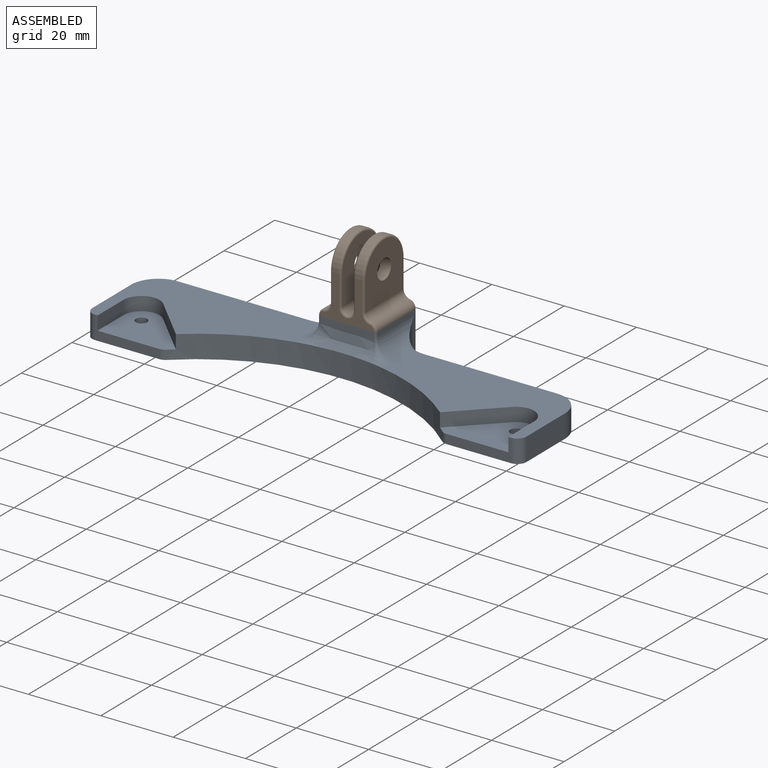
[diagram: assembled view]
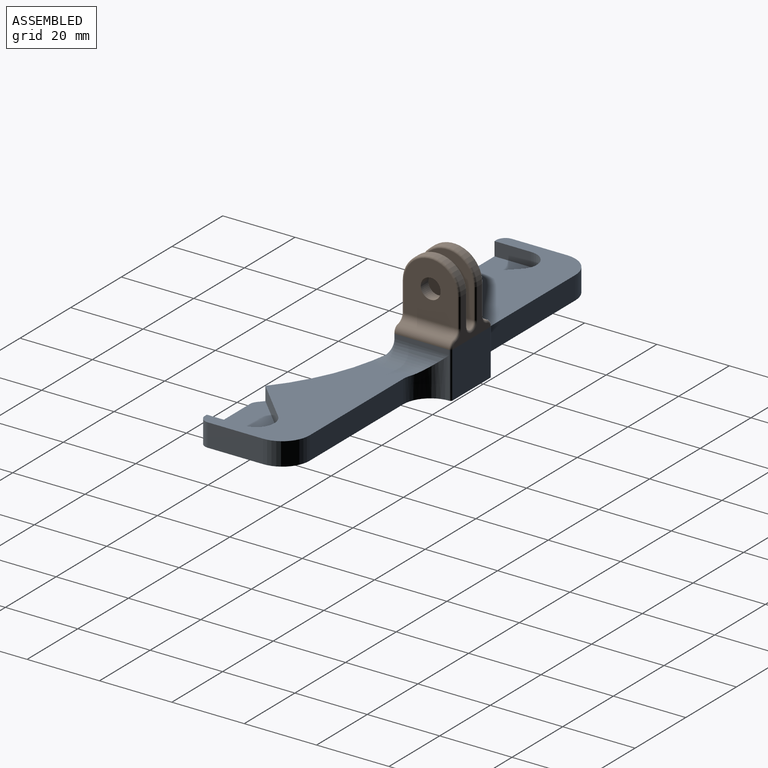
[diagram: assembled view, second angle]
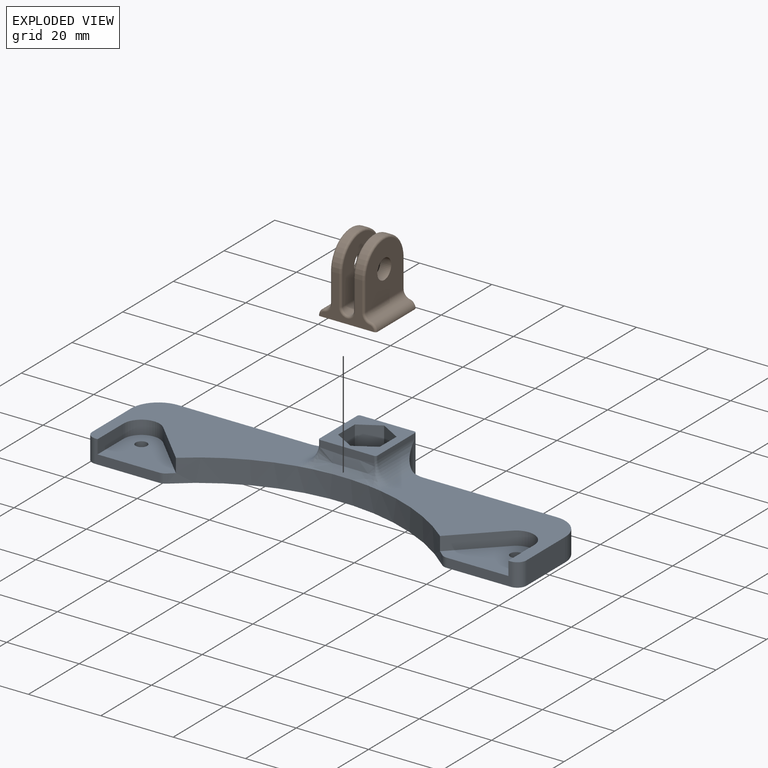
[diagram: exploded view]
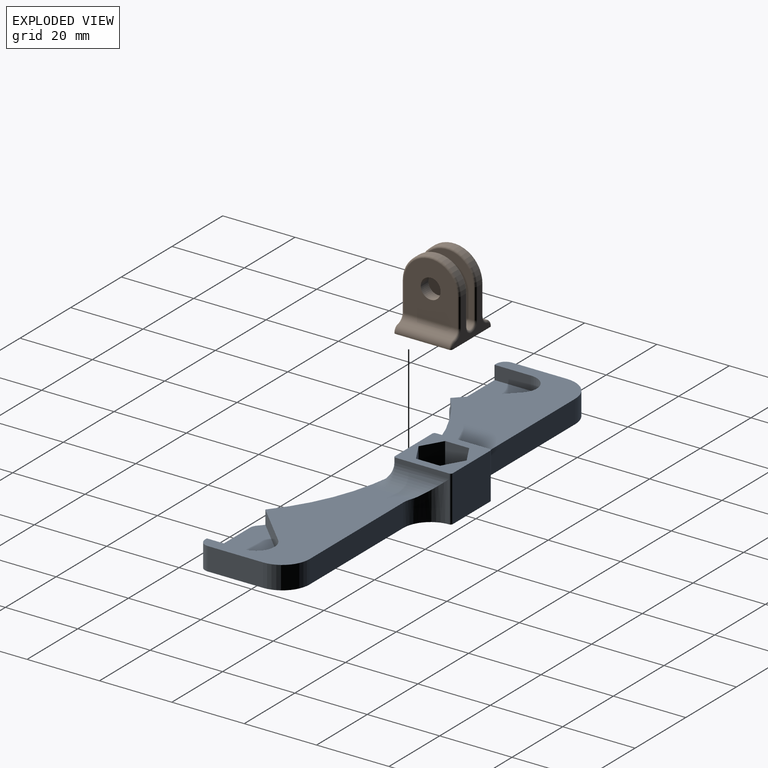
[diagram: exploded view, second angle]
ASSEMBLY  parts=2 mates=3
PART A: 53 faces, bbox 120x33.4x12.7 mm
  f0: plane 16x16mm, normal (0,0,1), area 141mm2, adj f21,f22,f23,f24,f25,f26,f27,f28
  f1: plane 48.5x25.83mm, normal (0,0,1), area 755.8mm2, adj f3,f4,f5,f9,f14,f15,f16,f31
  f2: plane 48.5x25.83mm, normal (0,0,1), area 755.8mm2, adj f5,f8,f10,f11,f18,f19,f20,f32
  f3: plane 36.76x6.35mm, normal (0,1,0), area 233.4mm2, adj f1,f12,f34,f35
  f4: plane 17.74x6.35mm, normal (0,-1,0), area 47.8mm2, adj f1,f12,f13,f15,f30,f31
  f5: cylinder r=56.83mm len=76.04mm, axis (0,0,1), area 513.5mm2, adj f1,f2,f12,f13,f14,f17,f18,f29
  f6: cylinder r=1.59mm len=3.18mm, axis (0,0,1), area 25.3mm2, adj f12,f17
  f7: cylinder r=1.59mm len=3.18mm, axis (0,0,1), area 25.3mm2, adj f12,f13
  f8: plane 17.74x6.35mm, normal (0,-1,0), area 47.8mm2, adj f2,f12,f17,f20,f29,f32
  f9: plane 15.24x6.35mm, normal (1,0,0), area 96.8mm2, adj f1,f12,f31,f35
  f10: plane 36.76x6.35mm, normal (0,1,0), area 233.4mm2, adj f2,f12,f33,f36
  f11: plane 15.24x6.35mm, normal (-1,0,0), area 96.8mm2, adj f2,f12,f32,f36
  f12: plane 120x33.4mm, normal (0,0,-1), area 2346.1mm2, adj f3,f4,f5,f6,f7,f8,f9,f10
  f13: plane 20.26x15.16mm, normal (0,0,1), area 204mm2, adj f4,f5,f7,f14,f15,f16,f30
  f14: plane 11.72x11.72mm, normal (0.71,-0.71,0), area 63.2mm2, adj f1,f5,f13,f16
  f15: plane 10.16x3.81mm, normal (-1,0,0), area 38.7mm2, adj f1,f4,f13,f16
  f16: cylinder r=5mm len=8.54mm, axis (0,0,1), area 44.9mm2, adj f1,f13,f14,f15
  f17: plane 20.26x15.16mm, normal (0,0,1), area 204mm2, adj f5,f6,f8,f18,f19,f20,f29
  f18: plane 11.72x11.72mm, normal (-0.71,-0.71,0), area 63.2mm2, adj f2,f5,f17,f19
  f19: cylinder r=5mm len=8.54mm, axis (0,0,1), area 44.9mm2, adj f2,f17,f18,f20
  f20: plane 10.16x3.81mm, normal (1,0,0), area 38.7mm2, adj f2,f8,f17,f19
  f21: plane 14.8x1.27mm, normal (-1,0,0), area 18.8mm2, adj f0,f25,f27,f38
  f22: plane 14.8x12.7mm, normal (0,1,0), area 188mm2, adj f0,f12,f27,f28
  f23: plane 14.8x1.27mm, normal (1,0,0), area 18.8mm2, adj f0,f26,f28,f44
  f24: plane 14.81x2.2mm, normal (0,-1,0), area 30.8mm2, adj f0,f25,f26,f41
  f25: cylinder r=0.6mm len=1.88mm, axis (0,0,-1), area 1.3mm2, adj f0,f21,f24,f39,f40
  f26: cylinder r=0.6mm len=1.88mm, axis (0,0,1), area 1.3mm2, adj f0,f23,f24,f42,f43
  f27: cylinder r=0.6mm len=12.7mm, axis (0,0,1), area 11.8mm2, adj f0,f12,f21,f22,f33,f37
  f28: cylinder r=0.6mm len=12.7mm, axis (0,0,-1), area 11.8mm2, adj f0,f12,f22,f23,f34,f45
  f29: cylinder r=2.54mm len=2.54mm, axis (0,0,1), area 4.7mm2, adj f5,f8,f12,f17
  f30: cylinder r=2.54mm len=2.54mm, axis (0,0,1), area 4.7mm2, adj f4,f5,f12,f13
  f31: cylinder r=2.54mm len=6.35mm, axis (0,0,1), area 25.3mm2, adj f1,f4,f9,f12
  f32: cylinder r=2.54mm len=6.35mm, axis (0,0,-1), area 25.3mm2, adj f2,f8,f11,f12
  f33: cylinder r=7.62mm len=11.43mm, axis (0,0,1), area 91.6mm2, adj f2,f10,f12,f27,f37,f38
  f34: cylinder r=7.62mm len=11.43mm, axis (0,0,-1), area 91.6mm2, adj f1,f3,f12,f28,f44,f45
  f35: cylinder r=7.62mm len=7.62mm, axis (0,0,-1), area 76mm2, adj f1,f3,f9,f12
  f36: cylinder r=7.62mm len=7.62mm, axis (0,0,1), area 76mm2, adj f2,f10,f11,f12
  f37: torus R=5.68mm, axis (0,0,1), area 0mm2, adj f27,f33,f38
  f38: cylinder r=5.08mm len=14.8mm, axis (0,1,0), area 86.2mm2, adj f2,f21,f33,f37,f39
  f39: torus R=5.68mm, axis (0,0,1), area 14.9mm2, adj f2,f25,f38,f40
  f40: bspline ~5.08x4.1mm, area 8.4mm2, adj f5,f25,f39,f41
  f41: bspline ~20.63x4.79mm, area 77mm2, adj f5,f24,f40,f42
  f42: bspline ~5.08x4.1mm, area 8.4mm2, adj f5,f26,f41,f43
  f43: torus R=5.68mm, axis (0,0,1), area 14.9mm2, adj f1,f26,f42,f44
  f44: cylinder r=5.08mm len=14.8mm, axis (0,-1,0), area 86.2mm2, adj f1,f23,f34,f43,f45
  f45: torus R=5.68mm, axis (0,0,1), area 0mm2, adj f28,f34,f44
  f46: plane 6.64x6.35mm, normal (-1,0,0), area 42.2mm2, adj f0,f47,f51,f52
  f47: plane 6.35x5.75mm, normal (-0.5,0.87,0), area 42.2mm2, adj f0,f46,f48,f52
  f48: plane 6.35x5.75mm, normal (0.5,0.87,0), area 42.2mm2, adj f0,f47,f49,f52
  f49: plane 6.64x6.35mm, normal (1,0,0), area 42.2mm2, adj f0,f48,f50,f52
  f50: plane 6.35x5.75mm, normal (0.5,-0.87,0), area 42.2mm2, adj f0,f49,f51,f52
  f51: plane 6.35x5.75mm, normal (-0.5,-0.87,0), area 42.2mm2, adj f0,f46,f50,f52
  f52: plane 13.29x11.51mm, normal (0,0,1), area 114.7mm2, adj f46,f47,f48,f49,f50,f51
PART B: 44 faces, bbox 16.3x17.3x20.7 mm
  f0: cylinder r=1.68mm len=14.8mm, axis (0,1,0), area 77.9mm2, adj f11,f12,f17,f24
  f1: plane 14.8x12mm, normal (0,1,0), area 63.8mm2, adj f3,f9,f22,f23,f24,f25,f26,f27
  f2: plane 14.8x12mm, normal (0,-1,0), area 63.8mm2, adj f3,f9,f17,f18,f19,f30,f31,f32
  f3: cylinder r=8mm len=16mm, axis (-1,0,0), area 45.9mm2, adj f1,f2,f21,f40
  f4: cylinder r=2.75mm len=5.5mm, axis (-1,0,0), area 52.3mm2, adj f8,f11
  f5: plane 14.8x0.06mm, normal (1,0,0), area 0.9mm2, adj f15,f26,f34,f43
  f6: plane 14.8x0.06mm, normal (-1,0,0), area 0.9mm2, adj f16,f33,f37,f43
  f7: plane 15.4x14.8mm, normal (1,0,0), area 180.7mm2, adj f10,f13,f28,f29,f30
  f8: plane 15.4x14.8mm, normal (-1,0,0), area 180.7mm2, adj f4,f14,f38,f40,f42
  f9: cylinder r=8mm len=16mm, axis (-1,0,0), area 45.9mm2, adj f1,f2,f20,f29
  f10: cylinder r=2.75mm len=5.5mm, axis (-1,0,0), area 52.3mm2, adj f7,f12
  f11: plane 15.73x14.8mm, normal (1,0,0), area 185.5mm2, adj f0,f4,f19,f21,f23
  f12: plane 15.73x14.8mm, normal (-1,0,0), area 185.5mm2, adj f0,f10,f18,f20,f22
  f13: cylinder r=2mm len=14.8mm, axis (0,1,0), area 41.3mm2, adj f7,f15,f27,f31
  f14: cylinder r=2mm len=14.8mm, axis (0,-1,0), area 41.3mm2, adj f8,f16,f36,f41
  f15: cylinder r=2mm len=14.8mm, axis (0,1,0), area 41.3mm2, adj f5,f13,f25,f32
  f16: cylinder r=2mm len=14.8mm, axis (0,-1,0), area 41.3mm2, adj f6,f14,f35,f39
  f17: torus R=2.27mm, axis (0,1,0), area 5.6mm2, adj f0,f2,f18,f19
  f18: cylinder r=0.6mm len=8.33mm, axis (0,0,-1), area 7.8mm2, adj f2,f12,f17,f20
  f19: cylinder r=0.6mm len=8.33mm, axis (0,0,1), area 7.8mm2, adj f2,f11,f17,f21
  f20: torus R=7.4mm, axis (1,0,0), area 23mm2, adj f9,f12,f18,f22
  f21: torus R=7.4mm, axis (1,0,0), area 23mm2, adj f3,f11,f19,f23
  f22: cylinder r=0.6mm len=8.33mm, axis (0,0,1), area 7.8mm2, adj f1,f12,f20,f24
  f23: cylinder r=0.6mm len=8.33mm, axis (0,0,-1), area 7.8mm2, adj f1,f11,f21,f24
  f24: torus R=2.27mm, axis (0,-1,0), area 5.6mm2, adj f0,f1,f22,f23
  f25: torus R=1.4mm, axis (0,-1,0), area 2.3mm2, adj f1,f15,f26,f27
  f26: cylinder r=0.6mm len=0.6mm, axis (0,0,-1), area 0.1mm2, adj f1,f5,f25,f43
  f27: torus R=2.6mm, axis (0,-1,0), area 2.9mm2, adj f1,f13,f25,f28
  f28: cylinder r=0.6mm len=8mm, axis (0,0,-1), area 7.5mm2, adj f1,f7,f27,f29
  f29: torus R=7.4mm, axis (1,0,0), area 23mm2, adj f7,f9,f28,f30
  f30: cylinder r=0.6mm len=8mm, axis (0,0,1), area 7.5mm2, adj f2,f7,f29,f31
  f31: torus R=2.6mm, axis (0,1,0), area 2.9mm2, adj f2,f13,f30,f32
  f32: torus R=1.4mm, axis (0,1,0), area 2.3mm2, adj f2,f15,f31,f34
  f33: cylinder r=0.6mm len=0.6mm, axis (0,0,-1), area 0.1mm2, adj f1,f6,f35,f43
  f34: cylinder r=0.6mm len=0.6mm, axis (0,0,-1), area 0.1mm2, adj f2,f5,f32,f43
  f35: torus R=1.4mm, axis (0,-1,0), area 2.3mm2, adj f1,f16,f33,f36
  f36: torus R=2.6mm, axis (0,-1,0), area 2.9mm2, adj f1,f14,f35,f38
  f37: cylinder r=0.6mm len=0.6mm, axis (0,0,-1), area 0.1mm2, adj f2,f6,f39,f43
  f38: cylinder r=0.6mm len=8mm, axis (0,0,1), area 7.5mm2, adj f1,f8,f36,f40
  f39: torus R=1.4mm, axis (0,1,0), area 2.3mm2, adj f2,f16,f37,f41
  f40: torus R=7.4mm, axis (1,0,0), area 23mm2, adj f3,f8,f38,f42
  f41: torus R=2.6mm, axis (0,1,0), area 2.9mm2, adj f2,f14,f39,f42
  f42: cylinder r=0.6mm len=8mm, axis (0,0,-1), area 7.5mm2, adj f2,f8,f40,f41
  f43: plane 16x16mm, normal (0,0,-1), area 255.7mm2, adj f1,f2,f5,f6,f26,f33,f34,f37
PLACE A rot(axis=(0,0,-1),0deg) t=(1.38,-3.46,-30.15)mm
PLACE B rot(axis=(0.97,0.23,-0.11),0deg) t=(1.38,11.78,-23.8)mm
MATE planar B.f5 <-> A.f23  axis (1,0,0) through (9.38,11.78,-23.77)mm
MATE planar B.f43 <-> A.f0  axis (0,0,-1) through (1.38,3.78,-23.8)mm
MATE planar B.f2 <-> A.f24  axis (0,-1,0) through (-0.89,3.78,-20.13)mm
